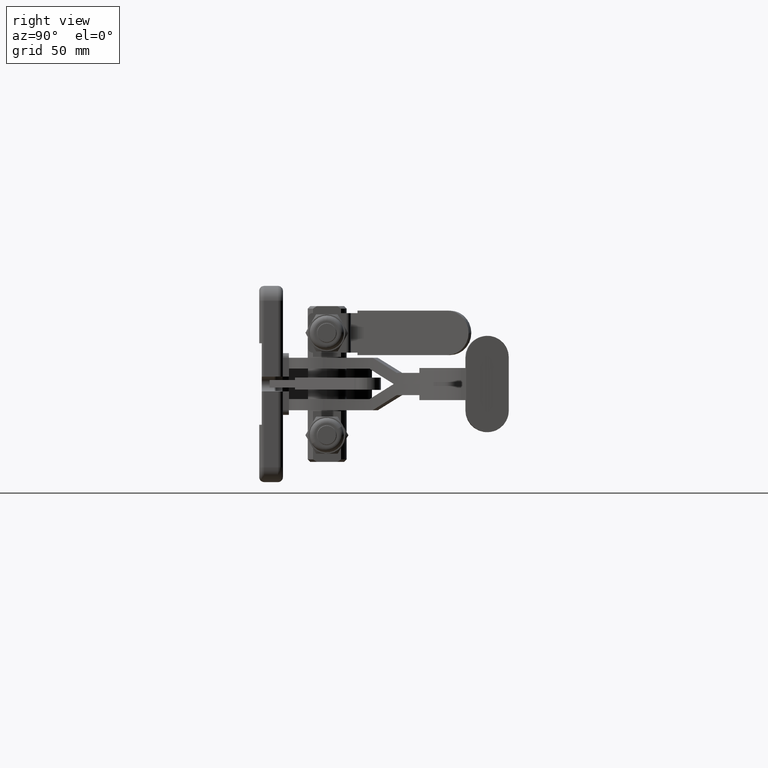
[diagram: clean part render]
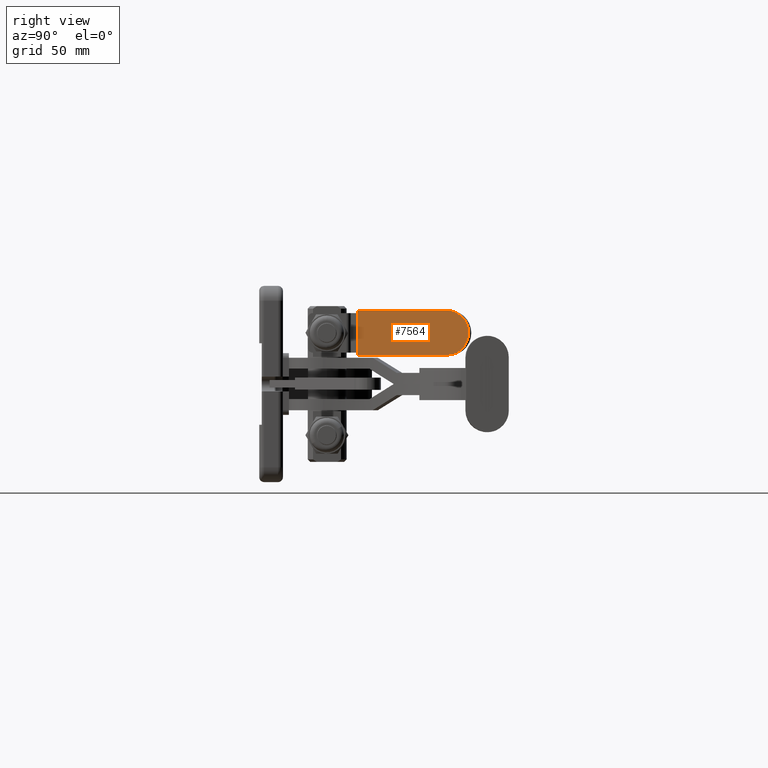
[diagram: same view with one face highlighted and labeled with its STEP entity id]
A machine part, right view. The second image highlights one B-rep face of the part: STEP entity #7564.
In plain terms, the highlighted planar face has unit normal (-0.9535, 0.3014, 0).
Its self-contained STEP definition (entity closure, byte-faithful):
#26 = DIRECTION ( 'NONE',  ( -0.9535033831267409900, 0.3013823126294236700, 1.343045053124707600E-017 ) ) ;
#114 = EDGE_CURVE ( 'NONE', #456, #10423, #4176, .T. ) ;
#456 = VERTEX_POINT ( 'NONE', #11723 ) ;
#795 = CIRCLE ( 'NONE', #2671, 9.000000000000000000 ) ;
#799 = CARTESIAN_POINT ( 'NONE',  ( 24.30018598123018200, 39.77470304226599800, 29.69999999999999600 ) ) ;
#900 = FACE_OUTER_BOUND ( 'NONE', #10651, .T. ) ;
#971 = DIRECTION ( 'NONE',  ( -0.9535033831267408800, 0.3013823126294236700, 1.343045053124707600E-017 ) ) ;
#1104 = CARTESIAN_POINT ( 'NONE',  ( 24.30018598123018200, 39.77470304226599800, 11.70000000000000100 ) ) ;
#1239 = VECTOR ( 'NONE', #8957, 1000.000000000000000 ) ;
#1478 = EDGE_CURVE ( 'NONE', #6263, #456, #795, .T. ) ;
#1903 = ORIENTED_EDGE ( 'NONE', *, *, #7496, .F. ) ;
#2045 = VECTOR ( 'NONE', #3553, 1000.000000000000200 ) ;
#2574 = CARTESIAN_POINT ( 'NONE',  ( 24.30018598123018200, 39.77470304226599800, 29.69999999999999600 ) ) ;
#2671 = AXIS2_PLACEMENT_3D ( 'NONE', #5510, #26, #6412 ) ;
#2787 = PLANE ( 'NONE',  #7767 ) ;
#3233 = VECTOR ( 'NONE', #10265, 1000.000000000000000 ) ;
#3498 = LINE ( 'NONE', #1104, #3233 ) ;
#3553 = DIRECTION ( 'NONE',  ( 0.3013823126294236700, 0.9535033831267407700, 5.645911673040472800E-018 ) ) ;
#3585 = VERTEX_POINT ( 'NONE', #7318 ) ;
#3678 = DIRECTION ( 'NONE',  ( -0.9535033831267409900, 0.3013823126294236700, 1.343045053124707600E-017 ) ) ;
#4176 = CIRCLE ( 'NONE', #8605, 9.000000000000000000 ) ;
#5509 = LINE ( 'NONE', #2574, #1239 ) ;
#5510 = CARTESIAN_POINT ( 'NONE',  ( 35.80164352059635000, 76.16263363777741800, 20.69999999999999600 ) ) ;
#5553 = VERTEX_POINT ( 'NONE', #9761 ) ;
#6263 = VERTEX_POINT ( 'NONE', #7197 ) ;
#6412 = DIRECTION ( 'NONE',  ( 0.3013823126294236700, 0.9535033831267407700, 0.0000000000000000000 ) ) ;
#6427 = CARTESIAN_POINT ( 'NONE',  ( 35.80164352059635000, 76.16263363777741800, 20.69999999999999600 ) ) ;
#7197 = CARTESIAN_POINT ( 'NONE',  ( 35.80164352059635000, 76.16263363777744600, 29.69999999999999600 ) ) ;
#7318 = CARTESIAN_POINT ( 'NONE',  ( 24.30018598123018200, 39.77470304226599800, 11.70000000000000100 ) ) ;
#7351 = DIRECTION ( 'NONE',  ( 0.3013823126294236700, 0.9535033831267408800, 5.645911673040474400E-018 ) ) ;
#7496 = EDGE_CURVE ( 'NONE', #5553, #6263, #8766, .T. ) ;
#7509 = CARTESIAN_POINT ( 'NONE',  ( 35.80164352059635000, 76.16263363777746100, 11.70000000000000100 ) ) ;
#7564 = ADVANCED_FACE ( 'NONE', ( #900 ), #2787, .F. ) ;
#7724 = ORIENTED_EDGE ( 'NONE', *, *, #11521, .F. ) ;
#7767 = AXIS2_PLACEMENT_3D ( 'NONE', #6427, #971, #7351 ) ;
#8456 = ORIENTED_EDGE ( 'NONE', *, *, #1478, .F. ) ;
#8605 = AXIS2_PLACEMENT_3D ( 'NONE', #10095, #3678, #9181 ) ;
#8766 = LINE ( 'NONE', #799, #2045 ) ;
#8957 = DIRECTION ( 'NONE',  ( 1.246846278119488400E-017, 1.351227578095362900E-016, 1.000000000000000000 ) ) ;
#9181 = DIRECTION ( 'NONE',  ( 0.3013823126294236700, 0.9535033831267407700, 0.0000000000000000000 ) ) ;
#9761 = CARTESIAN_POINT ( 'NONE',  ( 24.30018598123018200, 39.77470304226599800, 29.69999999999999600 ) ) ;
#10095 = CARTESIAN_POINT ( 'NONE',  ( 35.80164352059635000, 76.16263363777741800, 20.69999999999999600 ) ) ;
#10265 = DIRECTION ( 'NONE',  ( -0.3013823126294235500, -0.9535033831267408800, -5.645911673040475900E-018 ) ) ;
#10423 = VERTEX_POINT ( 'NONE', #7509 ) ;
#10643 = ORIENTED_EDGE ( 'NONE', *, *, #11852, .F. ) ;
#10651 = EDGE_LOOP ( 'NONE', ( #8456, #1903, #10643, #7724, #11404 ) ) ;
#11404 = ORIENTED_EDGE ( 'NONE', *, *, #114, .F. ) ;
#11521 = EDGE_CURVE ( 'NONE', #10423, #3585, #3498, .T. ) ;
#11723 = CARTESIAN_POINT ( 'NONE',  ( 38.51408433426116300, 84.74416408591808600, 20.69999999999999600 ) ) ;
#11852 = EDGE_CURVE ( 'NONE', #3585, #5553, #5509, .T. ) ;